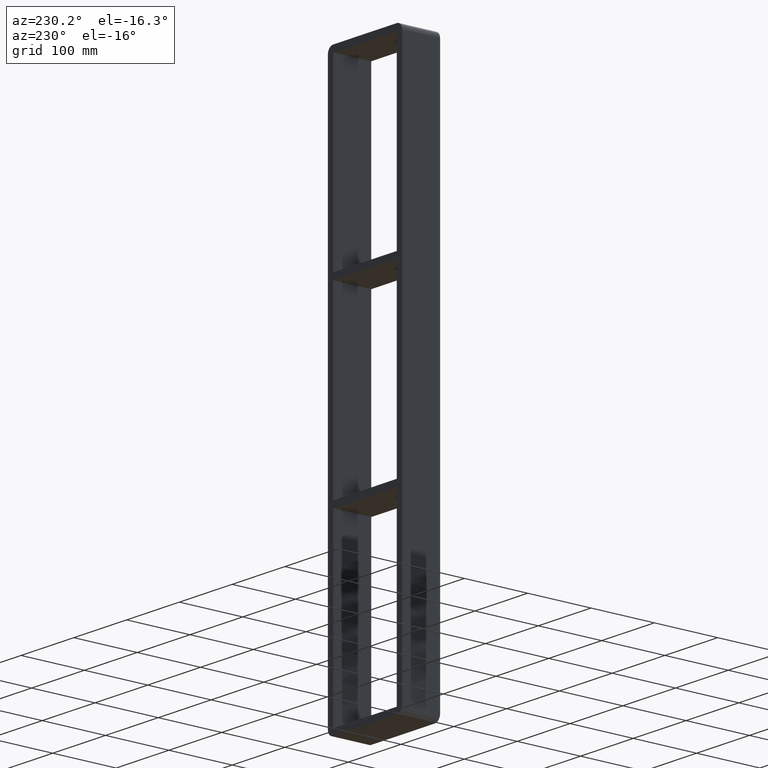
[diagram: clean part render]
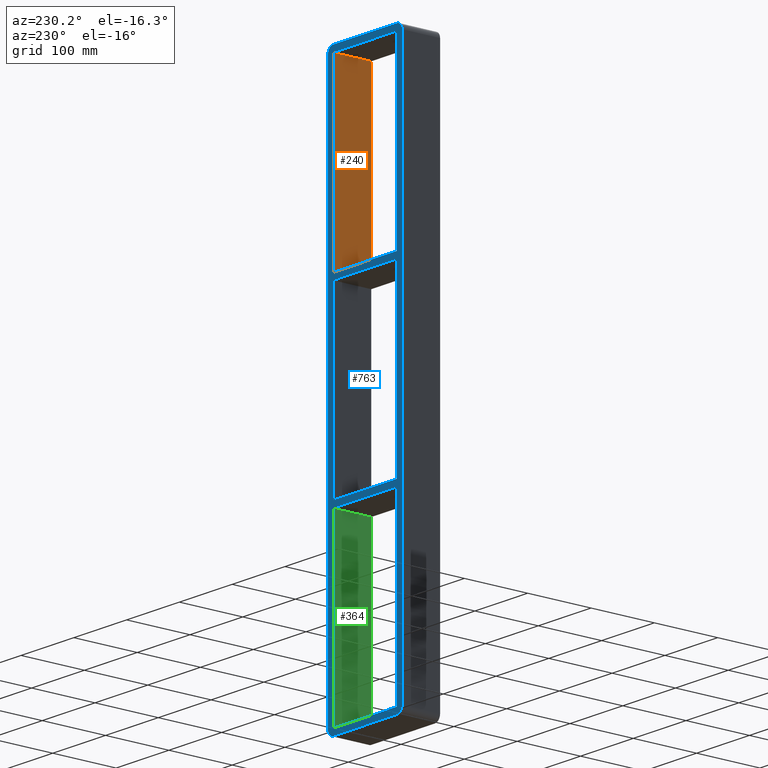
[diagram: same view with three faces highlighted in distinct colors, each labeled with its STEP entity id]
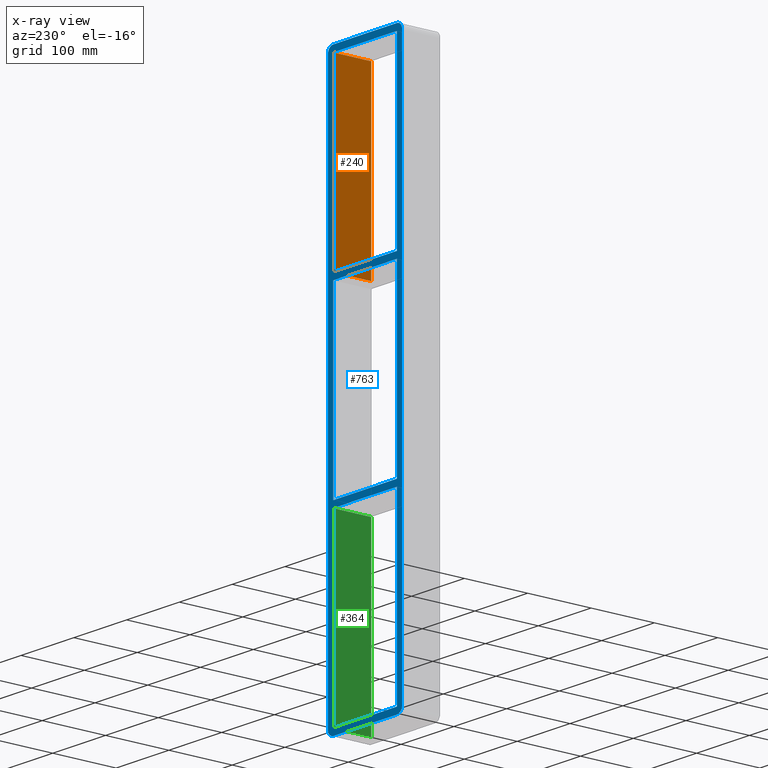
[diagram: x-ray of the same camera — body ghosted, the three highlighted faces saturated]
A machine part, auxiliary view with three faces highlighted in distinct colors.
The next image is the same camera in x-ray (body ghosted, the three faces saturated) — at least one of them is partly hidden behind the body in this view.
Their STEP definitions:

[orange] entity #240 — the highlighted planar face has unit normal (1, 0, 0).
#115=CARTESIAN_POINT('',(60.249999999999915,-3.0,148.99999999999994));
#116=VERTEX_POINT('',#115);
#123=CARTESIAN_POINT('',(60.249999999999915,57.0,148.99999999999994));
#124=VERTEX_POINT('',#123);
#125=CARTESIAN_POINT('',(60.25,57.000000000000007,148.99999999999997));
#126=DIRECTION('',(0.0,-1.0,0.0));
#127=VECTOR('',#126,60.000000000000007);
#128=LINE('',#125,#127);
#129=EDGE_CURVE('',#124,#116,#128,.T.);
#210=CARTESIAN_POINT('',(60.249999999999993,0.0,427.00000000000011));
#211=DIRECTION('',(1.0,0.0,0.0));
#212=DIRECTION('',(0.0,0.0,-1.0));
#213=AXIS2_PLACEMENT_3D('',#210,#211,#212);
#214=PLANE('',#213);
#215=ORIENTED_EDGE('',*,*,#129,.T.);
#216=CARTESIAN_POINT('',(60.249999999999993,-3.0,427.0));
#217=VERTEX_POINT('',#216);
#218=CARTESIAN_POINT('',(60.249999999999993,-3.0,427.0));
#219=DIRECTION('',(0.0,0.0,-1.0));
#220=VECTOR('',#219,278.00000000000006);
#221=LINE('',#218,#220);
#222=EDGE_CURVE('',#217,#116,#221,.T.);
#223=ORIENTED_EDGE('',*,*,#222,.F.);
#224=CARTESIAN_POINT('',(60.249999999999993,57.0,427.0));
#225=VERTEX_POINT('',#224);
#226=CARTESIAN_POINT('',(60.249999999999993,-3.0,427.00000000000011));
#227=DIRECTION('',(0.0,1.0,0.0));
#228=VECTOR('',#227,60.0);
#229=LINE('',#226,#228);
#230=EDGE_CURVE('',#217,#225,#229,.T.);
#231=ORIENTED_EDGE('',*,*,#230,.T.);
#232=CARTESIAN_POINT('',(60.249999999999993,57.0,148.99999999999994));
#233=DIRECTION('',(0.0,0.0,1.0));
#234=VECTOR('',#233,278.00000000000006);
#235=LINE('',#232,#234);
#236=EDGE_CURVE('',#124,#225,#235,.T.);
#237=ORIENTED_EDGE('',*,*,#236,.F.);
#238=EDGE_LOOP('',(#215,#223,#231,#237));
#239=FACE_OUTER_BOUND('',#238,.T.);
#240=ADVANCED_FACE('',(#239),#214,.F.);

[blue] entity #763 — the highlighted planar face has unit normal (0, 1, 0).
#83=CARTESIAN_POINT('',(-60.249999999999687,57.0,138.99999999999056));
#84=VERTEX_POINT('',#83);
#91=CARTESIAN_POINT('',(60.249999999996362,57.0,138.99999999999062));
#92=VERTEX_POINT('',#91);
#93=CARTESIAN_POINT('',(60.249999999996362,57.0,138.99999999999062));
#94=DIRECTION('',(-1.0,0.0,0.0));
#95=VECTOR('',#94,120.49999999999605);
#96=LINE('',#93,#95);
#97=EDGE_CURVE('',#92,#84,#96,.T.);
#123=CARTESIAN_POINT('',(60.249999999999915,57.0,148.99999999999994));
#124=VERTEX_POINT('',#123);
#131=CARTESIAN_POINT('',(-60.249999999999687,57.0,148.99999999999994));
#132=VERTEX_POINT('',#131);
#133=CARTESIAN_POINT('',(-60.249999999999687,57.0,148.99999999999994));
#134=DIRECTION('',(1.0,0.0,0.0));
#135=VECTOR('',#134,120.4999999999996);
#136=LINE('',#133,#135);
#137=EDGE_CURVE('',#132,#124,#136,.T.);
#154=CARTESIAN_POINT('',(-60.250000000000014,57.0,427.0));
#155=VERTEX_POINT('',#154);
#156=CARTESIAN_POINT('',(-60.25,57.0,427.0));
#157=DIRECTION('',(0.0,0.0,-1.0));
#158=VECTOR('',#157,278.0);
#159=LINE('',#156,#158);
#160=EDGE_CURVE('',#155,#132,#159,.T.);
#185=CARTESIAN_POINT('',(60.249999999999915,57.0,-139.00000000000006));
#186=VERTEX_POINT('',#185);
#187=CARTESIAN_POINT('',(60.249999999999993,57.0,-139.00000000000003));
#188=DIRECTION('',(0.0,0.0,1.0));
#189=VECTOR('',#188,277.99999999999068);
#190=LINE('',#187,#189);
#191=EDGE_CURVE('',#186,#92,#190,.T.);
#224=CARTESIAN_POINT('',(60.249999999999993,57.0,427.0));
#225=VERTEX_POINT('',#224);
#232=CARTESIAN_POINT('',(60.249999999999993,57.0,148.99999999999994));
#233=DIRECTION('',(0.0,0.0,1.0));
#234=VECTOR('',#233,278.00000000000006);
#235=LINE('',#232,#234);
#236=EDGE_CURVE('',#124,#225,#235,.T.);
#256=CARTESIAN_POINT('',(-60.249999999999687,57.0,-149.00000000000944));
#257=VERTEX_POINT('',#256);
#264=CARTESIAN_POINT('',(60.249999999996362,57.0,-149.00000000000941));
#265=VERTEX_POINT('',#264);
#266=CARTESIAN_POINT('',(60.249999999996362,57.0,-149.00000000000941));
#267=DIRECTION('',(-1.0,0.0,0.0));
#268=VECTOR('',#267,120.49999999999605);
#269=LINE('',#266,#268);
#270=EDGE_CURVE('',#265,#257,#269,.T.);
#295=CARTESIAN_POINT('',(-60.249999999999687,57.0,-139.00000000000006));
#296=VERTEX_POINT('',#295);
#297=CARTESIAN_POINT('',(-60.249999999999687,57.0,-139.00000000000006));
#298=DIRECTION('',(1.0,0.0,0.0));
#299=VECTOR('',#298,120.4999999999996);
#300=LINE('',#297,#299);
#301=EDGE_CURVE('',#296,#186,#300,.T.);
#325=CARTESIAN_POINT('',(-60.25,57.0,138.99999999999059));
#326=DIRECTION('',(0.0,0.0,-1.0));
#327=VECTOR('',#326,277.99999999999068);
#328=LINE('',#325,#327);
#329=EDGE_CURVE('',#84,#296,#328,.T.);
#340=CARTESIAN_POINT('',(60.249999999999993,57.0,-427.0));
#341=VERTEX_POINT('',#340);
#342=CARTESIAN_POINT('',(60.249999999999993,57.0,-427.0));
#343=DIRECTION('',(0.0,0.0,1.0));
#344=VECTOR('',#343,277.99999999999056);
#345=LINE('',#342,#344);
#346=EDGE_CURVE('',#341,#265,#345,.T.);
#370=CARTESIAN_POINT('',(60.25,57.0,-436.99999999999994));
#371=VERTEX_POINT('',#370);
#372=CARTESIAN_POINT('',(70.25,57.0,-426.99999999999994));
#373=VERTEX_POINT('',#372);
#374=CARTESIAN_POINT('',(60.25,57.0,-426.99999999999994));
#375=DIRECTION('',(0.0,-1.0,0.0));
#376=DIRECTION('',(0.707106781186547,0.0,-0.707106781186547));
#377=AXIS2_PLACEMENT_3D('',#374,#375,#376);
#378=CIRCLE('',#377,9.999999999999998);
#379=EDGE_CURVE('',#371,#373,#378,.T.);
#514=CARTESIAN_POINT('',(70.25,57.0,427.00000000000011));
#515=VERTEX_POINT('',#514);
#516=CARTESIAN_POINT('',(70.25,57.0,427.00000000000011));
#517=DIRECTION('',(0.0,0.0,-1.0));
#518=VECTOR('',#517,854.0);
#519=LINE('',#516,#518);
#520=EDGE_CURVE('',#515,#373,#519,.T.);
#539=CARTESIAN_POINT('',(60.25,57.0,437.00000000000011));
#540=VERTEX_POINT('',#539);
#541=CARTESIAN_POINT('',(60.25,57.0,427.00000000000011));
#542=DIRECTION('',(0.0,-1.0,0.0));
#543=DIRECTION('',(0.707106781186547,0.0,0.707106781186547));
#544=AXIS2_PLACEMENT_3D('',#541,#542,#543);
#545=CIRCLE('',#544,9.999999999999998);
#546=EDGE_CURVE('',#515,#540,#545,.T.);
#562=CARTESIAN_POINT('',(-70.25,57.0,-426.99999999999994));
#563=VERTEX_POINT('',#562);
#564=CARTESIAN_POINT('',(-60.25,57.0,-436.99999999999994));
#565=VERTEX_POINT('',#564);
#566=CARTESIAN_POINT('',(-60.25,57.0,-426.99999999999994));
#567=DIRECTION('',(0.0,-1.0,0.0));
#568=DIRECTION('',(-0.707106781186547,0.0,-0.707106781186547));
#569=AXIS2_PLACEMENT_3D('',#566,#567,#568);
#570=CIRCLE('',#569,9.999999999999998);
#571=EDGE_CURVE('',#563,#565,#570,.T.);
#596=CARTESIAN_POINT('',(-70.25,57.0,427.00000000000011));
#597=VERTEX_POINT('',#596);
#604=CARTESIAN_POINT('',(-70.25,57.0,-426.99999999999994));
#605=DIRECTION('',(0.0,0.0,1.0));
#606=VECTOR('',#605,854.0);
#607=LINE('',#604,#606);
#608=EDGE_CURVE('',#563,#597,#607,.T.);
#618=CARTESIAN_POINT('',(-60.25,57.0,437.00000000000011));
#619=VERTEX_POINT('',#618);
#620=CARTESIAN_POINT('',(-60.25,57.0,427.00000000000011));
#621=DIRECTION('',(0.0,-1.0,0.0));
#622=DIRECTION('',(-0.707106781186547,0.0,0.707106781186547));
#623=AXIS2_PLACEMENT_3D('',#620,#621,#622);
#624=CIRCLE('',#623,9.999999999999998);
#625=EDGE_CURVE('',#619,#597,#624,.T.);
#644=CARTESIAN_POINT('',(-60.25,57.0,437.00000000000011));
#645=DIRECTION('',(1.0,0.0,0.0));
#646=VECTOR('',#645,120.5);
#647=LINE('',#644,#646);
#648=EDGE_CURVE('',#619,#540,#647,.T.);
#663=CARTESIAN_POINT('',(60.25,57.0,427.00000000000011));
#664=DIRECTION('',(-1.0,0.0,0.0));
#665=VECTOR('',#664,120.50000000000001);
#666=LINE('',#663,#665);
#667=EDGE_CURVE('',#225,#155,#666,.T.);
#679=CARTESIAN_POINT('',(-60.250000000000014,57.0,-427.0));
#680=VERTEX_POINT('',#679);
#687=CARTESIAN_POINT('',(-60.25,57.0,-149.00000000000944));
#688=DIRECTION('',(0.0,0.0,-1.0));
#689=VECTOR('',#688,277.99999999999056);
#690=LINE('',#687,#689);
#691=EDGE_CURVE('',#257,#680,#690,.T.);
#704=CARTESIAN_POINT('',(-60.250000000000014,57.0,-427.0));
#705=DIRECTION('',(1.0,0.0,0.0));
#706=VECTOR('',#705,120.5);
#707=LINE('',#704,#706);
#708=EDGE_CURVE('',#680,#341,#707,.T.);
#721=CARTESIAN_POINT('',(60.25,57.0,-436.99999999999994));
#722=DIRECTION('',(-1.0,0.0,0.0));
#723=VECTOR('',#722,120.5);
#724=LINE('',#721,#723);
#725=EDGE_CURVE('',#371,#565,#724,.T.);
#730=CARTESIAN_POINT('',(0.0,57.0,6.723716E-014));
#731=DIRECTION('',(0.0,1.0,0.0));
#732=DIRECTION('',(0.0,0.0,1.0));
#733=AXIS2_PLACEMENT_3D('',#730,#731,#732);
#734=PLANE('',#733);
#735=ORIENTED_EDGE('',*,*,#379,.F.);
#736=ORIENTED_EDGE('',*,*,#725,.T.);
#737=ORIENTED_EDGE('',*,*,#571,.F.);
#738=ORIENTED_EDGE('',*,*,#608,.T.);
#739=ORIENTED_EDGE('',*,*,#625,.F.);
#740=ORIENTED_EDGE('',*,*,#648,.T.);
#741=ORIENTED_EDGE('',*,*,#546,.F.);
#742=ORIENTED_EDGE('',*,*,#520,.T.);
#743=EDGE_LOOP('',(#735,#736,#737,#738,#739,#740,#741,#742));
#744=FACE_OUTER_BOUND('',#743,.T.);
#745=ORIENTED_EDGE('',*,*,#329,.T.);
#746=ORIENTED_EDGE('',*,*,#301,.T.);
#747=ORIENTED_EDGE('',*,*,#191,.T.);
#748=ORIENTED_EDGE('',*,*,#97,.T.);
#749=EDGE_LOOP('',(#745,#746,#747,#748));
#750=FACE_BOUND('',#749,.T.);
#751=ORIENTED_EDGE('',*,*,#691,.T.);
#752=ORIENTED_EDGE('',*,*,#708,.T.);
#753=ORIENTED_EDGE('',*,*,#346,.T.);
#754=ORIENTED_EDGE('',*,*,#270,.T.);
#755=EDGE_LOOP('',(#751,#752,#753,#754));
#756=FACE_BOUND('',#755,.T.);
#757=ORIENTED_EDGE('',*,*,#137,.T.);
#758=ORIENTED_EDGE('',*,*,#236,.T.);
#759=ORIENTED_EDGE('',*,*,#667,.T.);
#760=ORIENTED_EDGE('',*,*,#160,.T.);
#761=EDGE_LOOP('',(#757,#758,#759,#760));
#762=FACE_BOUND('',#761,.T.);
#763=ADVANCED_FACE('',(#744,#750,#756,#762),#734,.T.);

[green] entity #364 — the highlighted planar face has unit normal (1, 0, 0).
#246=CARTESIAN_POINT('',(60.249999999996362,-3.0,-149.00000000000941));
#247=VERTEX_POINT('',#246);
#264=CARTESIAN_POINT('',(60.249999999996362,57.0,-149.00000000000941));
#265=VERTEX_POINT('',#264);
#272=CARTESIAN_POINT('',(60.249999999999993,-3.0,-149.00000000000938));
#273=DIRECTION('',(0.0,1.0,0.0));
#274=VECTOR('',#273,60.000000000000007);
#275=LINE('',#272,#274);
#276=EDGE_CURVE('',#247,#265,#275,.T.);
#334=CARTESIAN_POINT('',(60.249999999999993,0.0,427.00000000000011));
#335=DIRECTION('',(1.0,0.0,0.0));
#336=DIRECTION('',(0.0,0.0,-1.0));
#337=AXIS2_PLACEMENT_3D('',#334,#335,#336);
#338=PLANE('',#337);
#339=ORIENTED_EDGE('',*,*,#276,.T.);
#340=CARTESIAN_POINT('',(60.249999999999993,57.0,-427.0));
#341=VERTEX_POINT('',#340);
#342=CARTESIAN_POINT('',(60.249999999999993,57.0,-427.0));
#343=DIRECTION('',(0.0,0.0,1.0));
#344=VECTOR('',#343,277.99999999999056);
#345=LINE('',#342,#344);
#346=EDGE_CURVE('',#341,#265,#345,.T.);
#347=ORIENTED_EDGE('',*,*,#346,.F.);
#348=CARTESIAN_POINT('',(60.249999999999993,-3.0,-427.0));
#349=VERTEX_POINT('',#348);
#350=CARTESIAN_POINT('',(60.249999999999993,57.0,-427.0));
#351=DIRECTION('',(0.0,-1.0,0.0));
#352=VECTOR('',#351,60.0);
#353=LINE('',#350,#352);
#354=EDGE_CURVE('',#341,#349,#353,.T.);
#355=ORIENTED_EDGE('',*,*,#354,.T.);
#356=CARTESIAN_POINT('',(60.249999999999993,-3.0,-149.00000000000946));
#357=DIRECTION('',(0.0,0.0,-1.0));
#358=VECTOR('',#357,277.99999999999056);
#359=LINE('',#356,#358);
#360=EDGE_CURVE('',#247,#349,#359,.T.);
#361=ORIENTED_EDGE('',*,*,#360,.F.);
#362=EDGE_LOOP('',(#339,#347,#355,#361));
#363=FACE_OUTER_BOUND('',#362,.T.);
#364=ADVANCED_FACE('',(#363),#338,.F.);